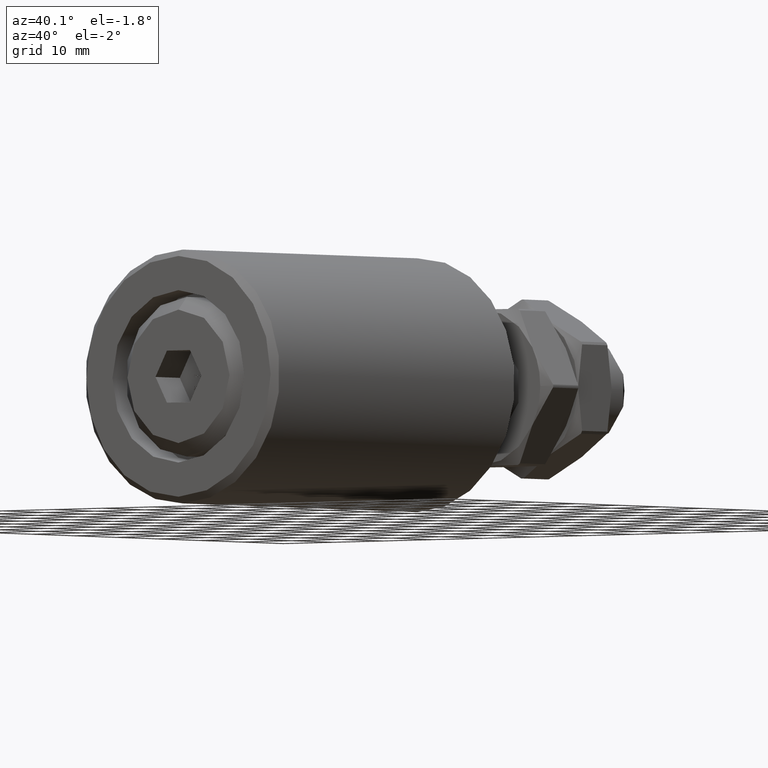
[diagram: clean part render]
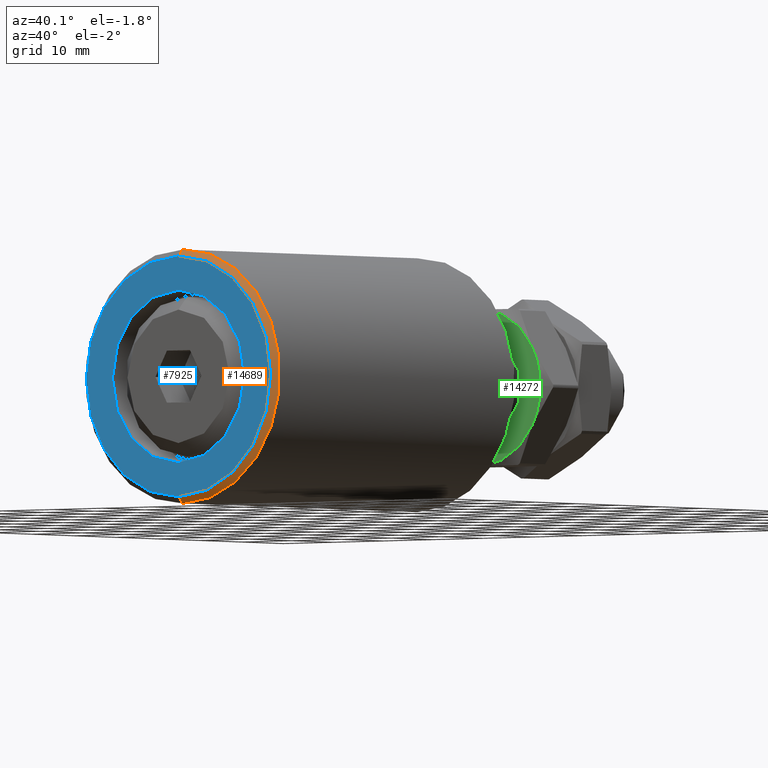
[diagram: same view with three faces highlighted in distinct colors, each labeled with its STEP entity id]
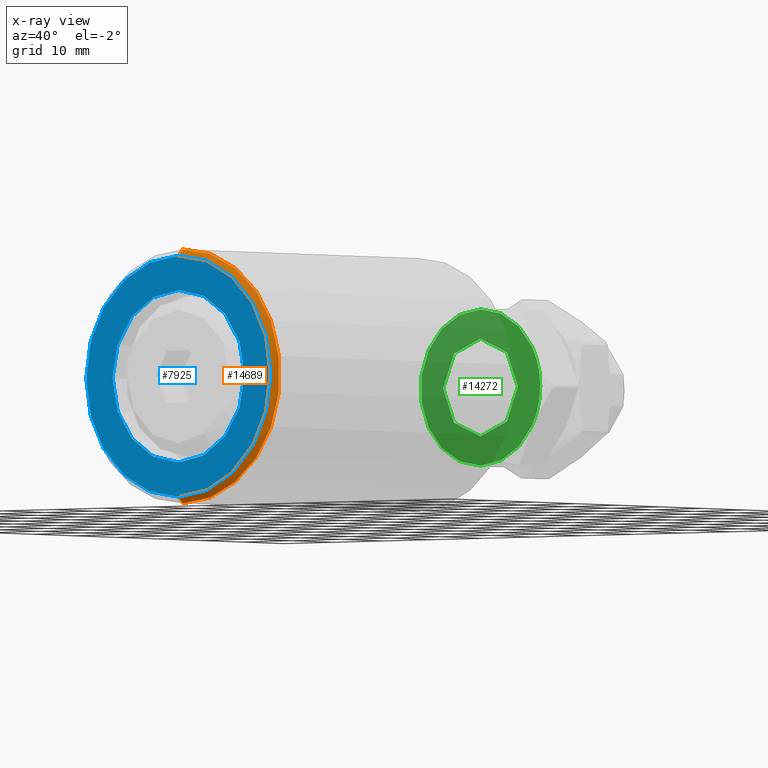
[diagram: x-ray of the same camera — body ghosted, the three highlighted faces saturated]
A machine part, auxiliary view with three faces highlighted in distinct colors.
The next image is the same camera in x-ray (body ghosted, the three faces saturated) — at least one of them is partly hidden behind the body in this view.
Their STEP definitions:

[orange] entity #14689 — the highlighted conical surface has half-angle 45 deg.
#1279 = EDGE_CURVE ( 'NONE', #7119, #4457, #3508, .T. ) ;
#1521 = ORIENTED_EDGE ( 'NONE', *, *, #1279, .F. ) ;
#2380 = FACE_OUTER_BOUND ( 'NONE', #13420, .T. ) ;
#2848 = DIRECTION ( 'NONE',  ( 0.000000000000000000, 0.000000000000000000, -1.000000000000000000 ) ) ;
#2924 = CIRCLE ( 'NONE', #15013, 19.50000000000000355 ) ;
#3508 = CIRCLE ( 'NONE', #8521, 18.50000000000001066 ) ;
#4130 = DIRECTION ( 'NONE',  ( 0.000000000000000000, 1.000000000000000000, 0.000000000000000000 ) ) ;
#4457 = VERTEX_POINT ( 'NONE', #6540 ) ;
#5432 = CARTESIAN_POINT ( 'NONE',  ( 2.388061258337339333E-15, 1.000000000000000888, 19.50000000000000355 ) ) ;
#5569 = CARTESIAN_POINT ( 'NONE',  ( 0.000000000000000000, 1.000000000000000888, -19.50000000000000355 ) ) ;
#5909 = EDGE_CURVE ( 'NONE', #4457, #11126, #11435, .T. ) ;
#5913 = CONICAL_SURFACE ( 'NONE', #10414, 18.50000000000001066, 0.7853981633974447263 ) ;
#5982 = VECTOR ( 'NONE', #12464, 1000.000000000000114 ) ;
#6402 = VECTOR ( 'NONE', #15217, 1000.000000000000114 ) ;
#6487 = CARTESIAN_POINT ( 'NONE',  ( 2.265596578422604580E-15, -3.061616997868357133E-17, -18.50000000000001066 ) ) ;
#6521 = DIRECTION ( 'NONE',  ( 0.000000000000000000, 0.000000000000000000, 1.000000000000000000 ) ) ;
#6540 = CARTESIAN_POINT ( 'NONE',  ( 0.000000000000000000, -3.061616997868357133E-17, 18.50000000000001066 ) ) ;
#6567 = CARTESIAN_POINT ( 'NONE',  ( 0.000000000000000000, 1.000000000000000888, 0.000000000000000000 ) ) ;
#6819 = CARTESIAN_POINT ( 'NONE',  ( 2.326828918379972154E-15, -3.061616997868357133E-17, -18.50000000000001066 ) ) ;
#7119 = VERTEX_POINT ( 'NONE', #6819 ) ;
#8239 = VERTEX_POINT ( 'NONE', #5569 ) ;
#8521 = AXIS2_PLACEMENT_3D ( 'NONE', #15156, #11937, #9787 ) ;
#8844 = EDGE_CURVE ( 'NONE', #7119, #8239, #11170, .T. ) ;
#8920 = DIRECTION ( 'NONE',  ( 0.000000000000000000, 1.000000000000000000, 0.000000000000000000 ) ) ;
#9787 = DIRECTION ( 'NONE',  ( 0.000000000000000000, 0.000000000000000000, -1.000000000000000000 ) ) ;
#10298 = CARTESIAN_POINT ( 'NONE',  ( 0.000000000000000000, -3.061616997868357133E-17, 18.50000000000001066 ) ) ;
#10414 = AXIS2_PLACEMENT_3D ( 'NONE', #11337, #8920, #6521 ) ;
#11126 = VERTEX_POINT ( 'NONE', #5432 ) ;
#11170 = LINE ( 'NONE', #6487, #5982 ) ;
#11337 = CARTESIAN_POINT ( 'NONE',  ( 0.000000000000000000, -3.061616997868357133E-17, 0.000000000000000000 ) ) ;
#11435 = LINE ( 'NONE', #10298, #6402 ) ;
#11937 = DIRECTION ( 'NONE',  ( -0.000000000000000000, -1.000000000000000000, -0.000000000000000000 ) ) ;
#12464 = DIRECTION ( 'NONE',  ( 8.659560562354903276E-17, 0.7071067811865500152, -0.7071067811865451302 ) ) ;
#12947 = ORIENTED_EDGE ( 'NONE', *, *, #8844, .T. ) ;
#13210 = ORIENTED_EDGE ( 'NONE', *, *, #13454, .F. ) ;
#13420 = EDGE_LOOP ( 'NONE', ( #1521, #12947, #13210, #15369 ) ) ;
#13454 = EDGE_CURVE ( 'NONE', #11126, #8239, #2924, .T. ) ;
#14689 = ADVANCED_FACE ( 'NONE', ( #2380 ), #5913, .T. ) ;
#15013 = AXIS2_PLACEMENT_3D ( 'NONE', #6567, #4130, #2848 ) ;
#15156 = CARTESIAN_POINT ( 'NONE',  ( 0.000000000000000000, -3.061616997868357133E-17, 0.000000000000000000 ) ) ;
#15217 = DIRECTION ( 'NONE',  ( 0.000000000000000000, 0.7071067811865500152, 0.7071067811865451302 ) ) ;
#15369 = ORIENTED_EDGE ( 'NONE', *, *, #5909, .F. ) ;

[blue] entity #7925 — the highlighted planar face has unit normal (0, -1, 0).
#431 = AXIS2_PLACEMENT_3D ( 'NONE', #1570, #4056, #14585 ) ;
#687 = DIRECTION ( 'NONE',  ( 0.000000000000000000, 0.000000000000000000, -1.000000000000000000 ) ) ;
#860 = ORIENTED_EDGE ( 'NONE', *, *, #1279, .T. ) ;
#922 = DIRECTION ( 'NONE',  ( 0.000000000000000000, 0.000000000000000000, -1.000000000000000000 ) ) ;
#1279 = EDGE_CURVE ( 'NONE', #7119, #4457, #3508, .T. ) ;
#1472 = AXIS2_PLACEMENT_3D ( 'NONE', #13701, #10227, #687 ) ;
#1570 = CARTESIAN_POINT ( 'NONE',  ( 0.000000000000000000, 0.000000000000000000, 0.000000000000000000 ) ) ;
#1872 = CIRCLE ( 'NONE', #1472, 13.25000000000000000 ) ;
#1890 = EDGE_LOOP ( 'NONE', ( #10781, #860 ) ) ;
#2092 = AXIS2_PLACEMENT_3D ( 'NONE', #10748, #3534, #14402 ) ;
#2268 = DIRECTION ( 'NONE',  ( -0.000000000000000000, -1.000000000000000000, -0.000000000000000000 ) ) ;
#2372 = AXIS2_PLACEMENT_3D ( 'NONE', #5770, #2268, #922 ) ;
#3112 = VERTEX_POINT ( 'NONE', #7739 ) ;
#3508 = CIRCLE ( 'NONE', #8521, 18.50000000000001066 ) ;
#3534 = DIRECTION ( 'NONE',  ( 0.000000000000000000, -1.000000000000000000, -0.000000000000000000 ) ) ;
#3707 = ORIENTED_EDGE ( 'NONE', *, *, #12460, .F. ) ;
#3918 = FACE_BOUND ( 'NONE', #13539, .T. ) ;
#4056 = DIRECTION ( 'NONE',  ( -0.000000000000000000, -1.000000000000000000, -0.000000000000000000 ) ) ;
#4251 = VERTEX_POINT ( 'NONE', #6183 ) ;
#4457 = VERTEX_POINT ( 'NONE', #6540 ) ;
#5635 = FACE_OUTER_BOUND ( 'NONE', #1890, .T. ) ;
#5770 = CARTESIAN_POINT ( 'NONE',  ( 0.000000000000000000, -3.061616997868357133E-17, 0.000000000000000000 ) ) ;
#6120 = EDGE_CURVE ( 'NONE', #4457, #7119, #13862, .T. ) ;
#6183 = CARTESIAN_POINT ( 'NONE',  ( 0.000000000000000000, 0.000000000000000000, -13.25000000000000000 ) ) ;
#6540 = CARTESIAN_POINT ( 'NONE',  ( 0.000000000000000000, -3.061616997868357133E-17, 18.50000000000001066 ) ) ;
#6819 = CARTESIAN_POINT ( 'NONE',  ( 2.326828918379972154E-15, -3.061616997868357133E-17, -18.50000000000001066 ) ) ;
#6993 = PLANE ( 'NONE',  #2092 ) ;
#7119 = VERTEX_POINT ( 'NONE', #6819 ) ;
#7739 = CARTESIAN_POINT ( 'NONE',  ( 1.622657008870242882E-15, 0.000000000000000000, 13.25000000000000000 ) ) ;
#7925 = ADVANCED_FACE ( 'NONE', ( #5635, #3918 ), #6993, .T. ) ;
#8521 = AXIS2_PLACEMENT_3D ( 'NONE', #15156, #11937, #9787 ) ;
#9360 = EDGE_CURVE ( 'NONE', #3112, #4251, #1872, .T. ) ;
#9787 = DIRECTION ( 'NONE',  ( 0.000000000000000000, 0.000000000000000000, -1.000000000000000000 ) ) ;
#10227 = DIRECTION ( 'NONE',  ( -0.000000000000000000, -1.000000000000000000, -0.000000000000000000 ) ) ;
#10748 = CARTESIAN_POINT ( 'NONE',  ( 19.50000000000000711, -3.061616997868357133E-17, 0.000000000000000000 ) ) ;
#10781 = ORIENTED_EDGE ( 'NONE', *, *, #6120, .T. ) ;
#11937 = DIRECTION ( 'NONE',  ( -0.000000000000000000, -1.000000000000000000, -0.000000000000000000 ) ) ;
#12460 = EDGE_CURVE ( 'NONE', #4251, #3112, #14135, .T. ) ;
#13539 = EDGE_LOOP ( 'NONE', ( #3707, #14489 ) ) ;
#13701 = CARTESIAN_POINT ( 'NONE',  ( 0.000000000000000000, 0.000000000000000000, 0.000000000000000000 ) ) ;
#13862 = CIRCLE ( 'NONE', #2372, 18.50000000000001066 ) ;
#14135 = CIRCLE ( 'NONE', #431, 13.25000000000000000 ) ;
#14402 = DIRECTION ( 'NONE',  ( 0.000000000000000000, 0.000000000000000000, -1.000000000000000000 ) ) ;
#14489 = ORIENTED_EDGE ( 'NONE', *, *, #9360, .F. ) ;
#14585 = DIRECTION ( 'NONE',  ( 0.000000000000000000, 0.000000000000000000, -1.000000000000000000 ) ) ;
#15156 = CARTESIAN_POINT ( 'NONE',  ( 0.000000000000000000, -3.061616997868357133E-17, 0.000000000000000000 ) ) ;

[green] entity #14272 — the highlighted planar face has unit normal (0, 1, 0).
#53 = EDGE_LOOP ( 'NONE', ( #2441, #8432, #5003, #14022, #1937, #14886, #1998 ) ) ;
#339 = AXIS2_PLACEMENT_3D ( 'NONE', #6883, #3422, #8164 ) ;
#608 = EDGE_CURVE ( 'NONE', #12657, #5024, #7613, .T. ) ;
#991 = EDGE_LOOP ( 'NONE', ( #11995, #14529 ) ) ;
#1835 = CARTESIAN_POINT ( 'NONE',  ( 0.000000000000000000, -4.000000000000000000, 0.000000000000000000 ) ) ;
#1937 = ORIENTED_EDGE ( 'NONE', *, *, #10538, .T. ) ;
#1998 = ORIENTED_EDGE ( 'NONE', *, *, #13759, .T. ) ;
#2037 = DIRECTION ( 'NONE',  ( -0.000000000000000000, -1.000000000000000000, -0.000000000000000000 ) ) ;
#2046 = CIRCLE ( 'NONE', #10590, 7.500000000000003553 ) ;
#2053 = CARTESIAN_POINT ( 'NONE',  ( -10.39230484541326582, -4.000000000000000000, -6.000000000000000888 ) ) ;
#2054 = DIRECTION ( 'NONE',  ( -0.000000000000000000, -1.000000000000000000, -0.000000000000000000 ) ) ;
#2096 = VERTEX_POINT ( 'NONE', #8004 ) ;
#2203 = DIRECTION ( 'NONE',  ( 0.000000000000000000, 0.000000000000000000, 1.000000000000000000 ) ) ;
#2441 = ORIENTED_EDGE ( 'NONE', *, *, #608, .T. ) ;
#2908 = CIRCLE ( 'NONE', #14917, 12.00000000000000000 ) ;
#3062 = VERTEX_POINT ( 'NONE', #6850 ) ;
#3422 = DIRECTION ( 'NONE',  ( -0.000000000000000000, -1.000000000000000000, -0.000000000000000000 ) ) ;
#3438 = DIRECTION ( 'NONE',  ( 0.000000000000000000, 1.000000000000000000, 0.000000000000000000 ) ) ;
#3470 = DIRECTION ( 'NONE',  ( 0.000000000000000000, 0.000000000000000000, 1.000000000000000000 ) ) ;
#3526 = DIRECTION ( 'NONE',  ( -0.000000000000000000, -1.000000000000000000, -0.000000000000000000 ) ) ;
#3892 = CARTESIAN_POINT ( 'NONE',  ( -6.735557395310443749E-17, -4.000000000000000000, 3.499898287792242640E-16 ) ) ;
#4084 = DIRECTION ( 'NONE',  ( -0.000000000000000000, -1.000000000000000000, -0.000000000000000000 ) ) ;
#4163 = CARTESIAN_POINT ( 'NONE',  ( 10.39230484541326582, -4.000000000000000000, 5.999999999999997335 ) ) ;
#4283 = DIRECTION ( 'NONE',  ( 0.000000000000000000, 1.000000000000000000, 0.000000000000000000 ) ) ;
#4542 = AXIS2_PLACEMENT_3D ( 'NONE', #6583, #14667, #7556 ) ;
#4862 = EDGE_CURVE ( 'NONE', #14079, #14225, #9556, .T. ) ;
#5003 = ORIENTED_EDGE ( 'NONE', *, *, #4862, .T. ) ;
#5024 = VERTEX_POINT ( 'NONE', #8654 ) ;
#5601 = CARTESIAN_POINT ( 'NONE',  ( -6.735557395310443749E-17, -4.000000000000000000, 3.499898287792242640E-16 ) ) ;
#5846 = DIRECTION ( 'NONE',  ( 0.000000000000000000, 1.000000000000000000, 0.000000000000000000 ) ) ;
#5892 = CARTESIAN_POINT ( 'NONE',  ( 0.000000000000000000, -4.000000000000000000, 0.000000000000000000 ) ) ;
#6217 = EDGE_CURVE ( 'NONE', #7663, #3062, #14970, .T. ) ;
#6248 = AXIS2_PLACEMENT_3D ( 'NONE', #3892, #4084, #8875 ) ;
#6316 = CIRCLE ( 'NONE', #6248, 12.00000000000000000 ) ;
#6319 = CARTESIAN_POINT ( 'NONE',  ( 9.184850993605153861E-16, -4.000000000000000000, 7.500000000000003553 ) ) ;
#6388 = CARTESIAN_POINT ( 'NONE',  ( 12.00000000000000000, -4.000000000000000000, 0.000000000000000000 ) ) ;
#6583 = CARTESIAN_POINT ( 'NONE',  ( -6.735557395310443749E-17, -4.000000000000000000, 0.000000000000000000 ) ) ;
#6850 = CARTESIAN_POINT ( 'NONE',  ( 0.000000000000000000, -4.000000000000000000, -7.500000000000003553 ) ) ;
#6854 = AXIS2_PLACEMENT_3D ( 'NONE', #6999, #2054, #2203 ) ;
#6883 = CARTESIAN_POINT ( 'NONE',  ( -6.735557395310443749E-17, -4.000000000000000000, 3.499898287792242640E-16 ) ) ;
#6903 = DIRECTION ( 'NONE',  ( 0.000000000000000000, -0.000000000000000000, 1.000000000000000000 ) ) ;
#6964 = AXIS2_PLACEMENT_3D ( 'NONE', #1835, #5846, #6903 ) ;
#6999 = CARTESIAN_POINT ( 'NONE',  ( -6.735557395310443749E-17, -4.000000000000000000, 3.499898287792242640E-16 ) ) ;
#7028 = VERTEX_POINT ( 'NONE', #14734 ) ;
#7556 = DIRECTION ( 'NONE',  ( 1.000000000000000000, 0.000000000000000000, 0.000000000000000000 ) ) ;
#7613 = CIRCLE ( 'NONE', #4542, 12.00000000000000000 ) ;
#7663 = VERTEX_POINT ( 'NONE', #6319 ) ;
#7848 = CARTESIAN_POINT ( 'NONE',  ( 0.000000000000000000, -4.000000000000000000, 0.000000000000000000 ) ) ;
#8004 = CARTESIAN_POINT ( 'NONE',  ( -1.569670172690264073E-15, -4.000000000000000000, -12.00000000000000000 ) ) ;
#8164 = DIRECTION ( 'NONE',  ( 2.664535259100376091E-15, 0.000000000000000000, 1.000000000000000000 ) ) ;
#8267 = CARTESIAN_POINT ( 'NONE',  ( -6.735557395310443749E-17, -4.000000000000000000, 3.499898287792242640E-16 ) ) ;
#8279 = CARTESIAN_POINT ( 'NONE',  ( -10.39230484541326405, -4.000000000000000000, 6.000000000000000888 ) ) ;
#8315 = FACE_OUTER_BOUND ( 'NONE', #53, .T. ) ;
#8432 = ORIENTED_EDGE ( 'NONE', *, *, #13074, .T. ) ;
#8654 = CARTESIAN_POINT ( 'NONE',  ( -6.735557395310443749E-17, -4.000000000000000000, 12.00000000000000000 ) ) ;
#8875 = DIRECTION ( 'NONE',  ( 0.000000000000000000, 0.000000000000000000, 1.000000000000000000 ) ) ;
#9182 = DIRECTION ( 'NONE',  ( 0.000000000000000000, 0.000000000000000000, 1.000000000000000000 ) ) ;
#9416 = CIRCLE ( 'NONE', #6854, 12.00000000000000000 ) ;
#9447 = DIRECTION ( 'NONE',  ( 0.000000000000000000, 0.000000000000000000, 1.000000000000000000 ) ) ;
#9490 = DIRECTION ( 'NONE',  ( -0.000000000000000000, -1.000000000000000000, -0.000000000000000000 ) ) ;
#9556 = CIRCLE ( 'NONE', #11331, 12.00000000000000000 ) ;
#10382 = DIRECTION ( 'NONE',  ( 0.000000000000000000, 0.000000000000000000, 1.000000000000000000 ) ) ;
#10538 = EDGE_CURVE ( 'NONE', #2096, #7028, #10783, .T. ) ;
#10590 = AXIS2_PLACEMENT_3D ( 'NONE', #7848, #4283, #9182 ) ;
#10783 = CIRCLE ( 'NONE', #12810, 12.00000000000000000 ) ;
#10849 = EDGE_CURVE ( 'NONE', #3062, #7663, #2046, .T. ) ;
#11098 = FACE_BOUND ( 'NONE', #991, .T. ) ;
#11331 = AXIS2_PLACEMENT_3D ( 'NONE', #11670, #2037, #10382 ) ;
#11535 = EDGE_CURVE ( 'NONE', #7028, #12475, #6316, .T. ) ;
#11670 = CARTESIAN_POINT ( 'NONE',  ( -6.735557395310443749E-17, -4.000000000000000000, 3.499898287792242640E-16 ) ) ;
#11995 = ORIENTED_EDGE ( 'NONE', *, *, #10849, .T. ) ;
#12475 = VERTEX_POINT ( 'NONE', #6388 ) ;
#12657 = VERTEX_POINT ( 'NONE', #4163 ) ;
#12810 = AXIS2_PLACEMENT_3D ( 'NONE', #8267, #3526, #3470 ) ;
#13074 = EDGE_CURVE ( 'NONE', #5024, #14079, #9416, .T. ) ;
#13530 = CIRCLE ( 'NONE', #339, 12.00000000000000000 ) ;
#13759 = EDGE_CURVE ( 'NONE', #12475, #12657, #13530, .T. ) ;
#14022 = ORIENTED_EDGE ( 'NONE', *, *, #14089, .T. ) ;
#14079 = VERTEX_POINT ( 'NONE', #8279 ) ;
#14089 = EDGE_CURVE ( 'NONE', #14225, #2096, #2908, .T. ) ;
#14225 = VERTEX_POINT ( 'NONE', #2053 ) ;
#14272 = ADVANCED_FACE ( 'NONE', ( #11098, #8315 ), #14893, .F. ) ;
#14529 = ORIENTED_EDGE ( 'NONE', *, *, #6217, .T. ) ;
#14667 = DIRECTION ( 'NONE',  ( -1.683889348827610937E-17, -1.000000000000000000, -0.000000000000000000 ) ) ;
#14734 = CARTESIAN_POINT ( 'NONE',  ( 10.39230484541326227, -4.000000000000000000, -6.000000000000004441 ) ) ;
#14886 = ORIENTED_EDGE ( 'NONE', *, *, #11535, .T. ) ;
#14893 = PLANE ( 'NONE',  #6964 ) ;
#14917 = AXIS2_PLACEMENT_3D ( 'NONE', #5601, #9490, #15088 ) ;
#14938 = AXIS2_PLACEMENT_3D ( 'NONE', #5892, #3438, #9447 ) ;
#14970 = CIRCLE ( 'NONE', #14938, 7.500000000000003553 ) ;
#15088 = DIRECTION ( 'NONE',  ( 1.776356839400250465E-15, 0.000000000000000000, 1.000000000000000000 ) ) ;